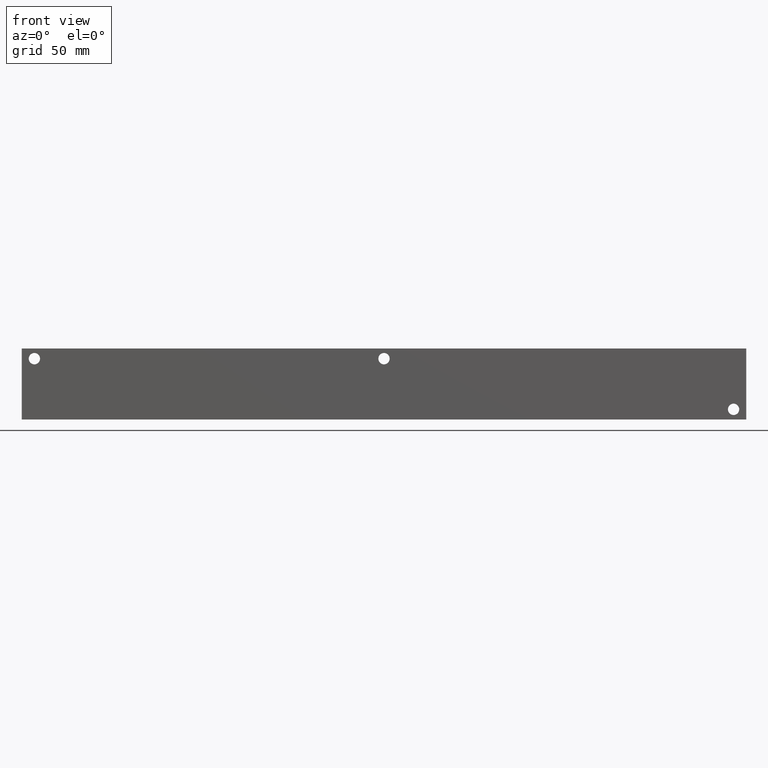
[diagram: clean part render]
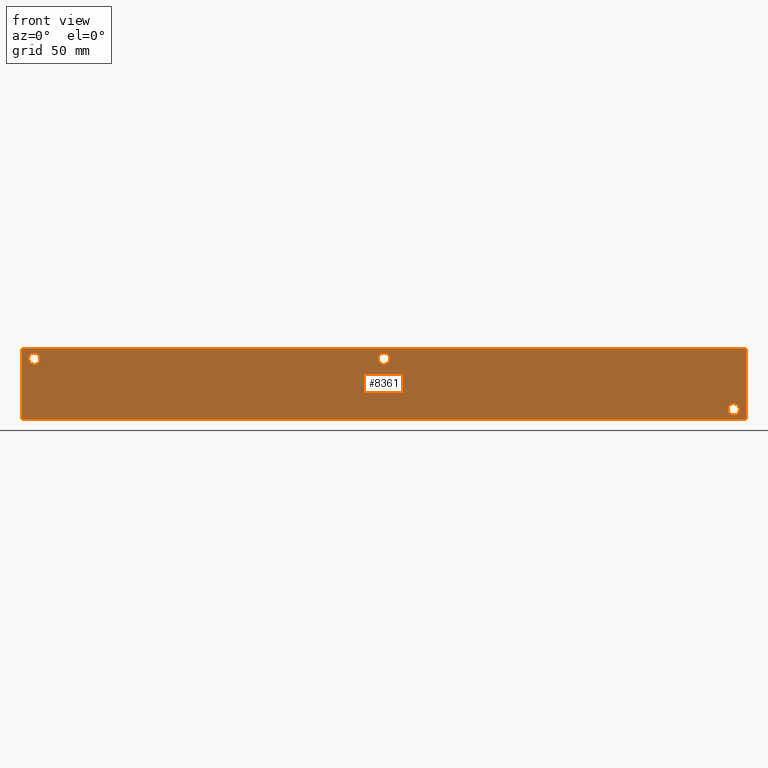
[diagram: same view with one face highlighted and labeled with its STEP entity id]
A machine part, front view. The second image highlights one B-rep face of the part: STEP entity #8361.
In plain terms, the highlighted planar face has unit normal (0, -1, 0).
Its self-contained STEP definition (entity closure, byte-faithful):
#162=CIRCLE('',#8614,3.5687);
#163=CIRCLE('',#8615,3.5687);
#165=CIRCLE('',#8624,3.5687);
#166=CIRCLE('',#8625,3.5687);
#168=CIRCLE('',#8633,3.5687);
#169=CIRCLE('',#8634,3.5687);
#434=FACE_BOUND('',#1631,.T.);
#435=FACE_BOUND('',#1632,.T.);
#436=FACE_BOUND('',#1633,.T.);
#1126=FACE_OUTER_BOUND('',#1630,.T.);
#1630=EDGE_LOOP('',(#7385,#7386,#7387,#7388));
#1631=EDGE_LOOP('',(#7389,#7390));
#1632=EDGE_LOOP('',(#7391,#7392));
#1633=EDGE_LOOP('',(#7393,#7394));
#1890=LINE('',#12722,#2640);
#2382=LINE('',#14369,#3132);
#2387=LINE('',#14378,#3137);
#2388=LINE('',#14380,#3138);
#2640=VECTOR('',#9358,10.);
#3132=VECTOR('',#10880,10.);
#3137=VECTOR('',#10889,10.);
#3138=VECTOR('',#10892,10.);
#3409=VERTEX_POINT('',#12720);
#3410=VERTEX_POINT('',#12721);
#3701=VERTEX_POINT('',#13688);
#3702=VERTEX_POINT('',#13689);
#3706=VERTEX_POINT('',#13706);
#3707=VERTEX_POINT('',#13707);
#3711=VERTEX_POINT('',#13722);
#3712=VERTEX_POINT('',#13723);
#3922=VERTEX_POINT('',#14367);
#3924=VERTEX_POINT('',#14376);
#4330=EDGE_CURVE('',#3409,#3410,#1890,.T.);
#4753=EDGE_CURVE('',#3701,#3702,#162,.T.);
#4754=EDGE_CURVE('',#3702,#3701,#163,.T.);
#4763=EDGE_CURVE('',#3706,#3707,#165,.T.);
#4764=EDGE_CURVE('',#3707,#3706,#166,.T.);
#4772=EDGE_CURVE('',#3711,#3712,#168,.T.);
#4773=EDGE_CURVE('',#3712,#3711,#169,.T.);
#5078=EDGE_CURVE('',#3922,#3409,#2382,.T.);
#5083=EDGE_CURVE('',#3924,#3410,#2387,.T.);
#5084=EDGE_CURVE('',#3922,#3924,#2388,.T.);
#7385=ORIENTED_EDGE('',*,*,#5084,.T.);
#7386=ORIENTED_EDGE('',*,*,#5083,.T.);
#7387=ORIENTED_EDGE('',*,*,#4330,.F.);
#7388=ORIENTED_EDGE('',*,*,#5078,.F.);
#7389=ORIENTED_EDGE('',*,*,#4753,.T.);
#7390=ORIENTED_EDGE('',*,*,#4754,.T.);
#7391=ORIENTED_EDGE('',*,*,#4763,.T.);
#7392=ORIENTED_EDGE('',*,*,#4764,.T.);
#7393=ORIENTED_EDGE('',*,*,#4772,.T.);
#7394=ORIENTED_EDGE('',*,*,#4773,.T.);
#7641=PLANE('',#8964);
#8361=ADVANCED_FACE('',(#1126,#434,#435,#436),#7641,.T.);
#8614=AXIS2_PLACEMENT_3D('',#13690,#10073,#10074);
#8615=AXIS2_PLACEMENT_3D('',#13691,#10075,#10076);
#8624=AXIS2_PLACEMENT_3D('',#13708,#10096,#10097);
#8625=AXIS2_PLACEMENT_3D('',#13709,#10098,#10099);
#8633=AXIS2_PLACEMENT_3D('',#13724,#10116,#10117);
#8634=AXIS2_PLACEMENT_3D('',#13725,#10118,#10119);
#8964=AXIS2_PLACEMENT_3D('',#14379,#10890,#10891);
#9358=DIRECTION('',(1.,0.,0.));
#10073=DIRECTION('center_axis',(0.,1.,0.));
#10074=DIRECTION('ref_axis',(1.,0.,0.));
#10075=DIRECTION('center_axis',(0.,1.,0.));
#10076=DIRECTION('ref_axis',(1.,0.,0.));
#10096=DIRECTION('center_axis',(0.,1.,0.));
#10097=DIRECTION('ref_axis',(1.,0.,0.));
#10098=DIRECTION('center_axis',(0.,1.,0.));
#10099=DIRECTION('ref_axis',(1.,0.,0.));
#10116=DIRECTION('center_axis',(0.,1.,0.));
#10117=DIRECTION('ref_axis',(1.,0.,0.));
#10118=DIRECTION('center_axis',(0.,1.,0.));
#10119=DIRECTION('ref_axis',(1.,0.,0.));
#10880=DIRECTION('',(0.,0.,1.));
#10889=DIRECTION('',(0.,0.,1.));
#10890=DIRECTION('center_axis',(0.,-1.,0.));
#10891=DIRECTION('ref_axis',(1.,0.,0.));
#10892=DIRECTION('',(1.,0.,0.));
#12720=CARTESIAN_POINT('',(0.,0.,44.45));
#12721=CARTESIAN_POINT('',(454.025,0.,44.45));
#12722=CARTESIAN_POINT('',(0.,0.,44.45));
#13688=CARTESIAN_POINT('',(449.6435,0.,6.35));
#13689=CARTESIAN_POINT('',(442.5061,7.105427357601E-14,6.35));
#13690=CARTESIAN_POINT('Origin',(446.0748,0.,6.35));
#13691=CARTESIAN_POINT('Origin',(446.0748,0.,6.35));
#13706=CARTESIAN_POINT('',(11.4935,0.,38.1));
#13707=CARTESIAN_POINT('',(4.3561,7.105427357601E-14,38.1));
#13708=CARTESIAN_POINT('Origin',(7.9248,0.,38.1));
#13709=CARTESIAN_POINT('Origin',(7.9248,0.,38.1));
#13722=CARTESIAN_POINT('',(230.5939,0.,38.1));
#13723=CARTESIAN_POINT('',(223.4565,7.105427357601E-14,38.1));
#13724=CARTESIAN_POINT('Origin',(227.0252,0.,38.1));
#13725=CARTESIAN_POINT('Origin',(227.0252,0.,38.1));
#14367=CARTESIAN_POINT('',(0.,0.,0.));
#14369=CARTESIAN_POINT('',(0.,0.,0.));
#14376=CARTESIAN_POINT('',(454.025,0.,0.));
#14378=CARTESIAN_POINT('',(454.025,0.,0.));
#14379=CARTESIAN_POINT('Origin',(0.,0.,0.));
#14380=CARTESIAN_POINT('',(0.,0.,0.));